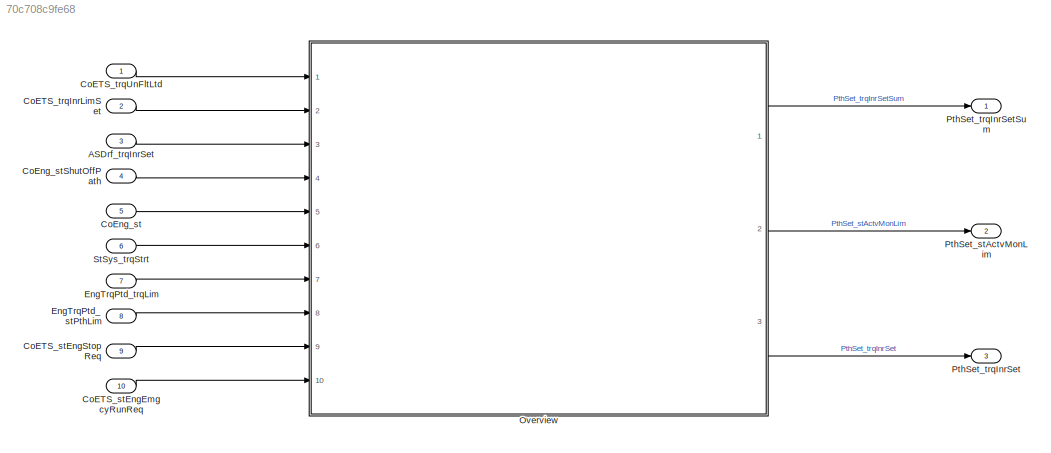
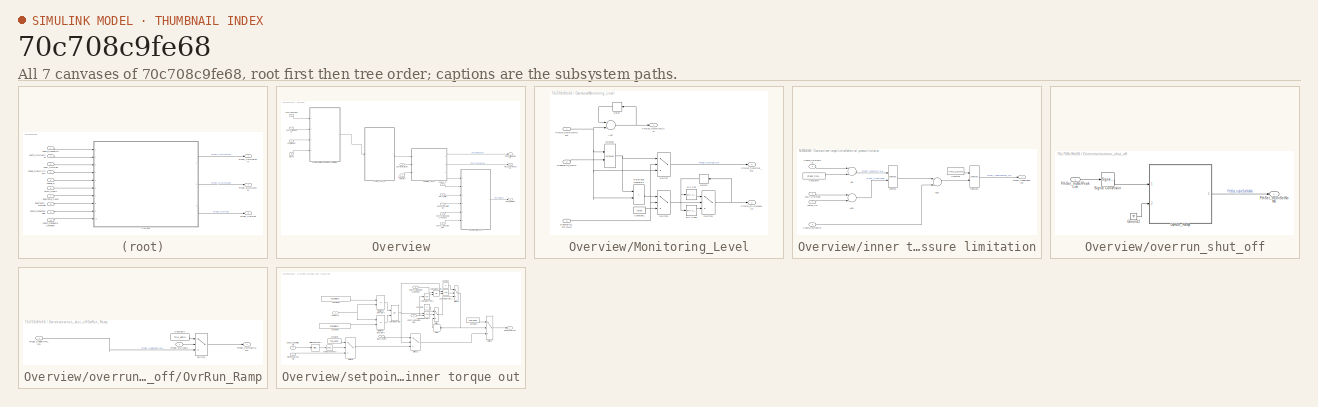
[diagram: thumbnail index - all 7 canvases of the model, root first then tree order]
MODEL slx_70c708c9fe68
KIND model
CONFIG AbsTol = auto
CONFIG EnableMultiTasking = off
CONFIG FixedStep = 0.001
CONFIG MaxStep = auto
CONFIG MinStep = auto
CONFIG RelTol = 1e-3
CONFIG SampleTimeConstraint = Unconstrained
CONFIG Solver = FixedStepDiscrete
CONFIG SolverName = FixedStepDiscrete
CONFIG StartTime = 0.0
CONFIG StopTime = Inf
BLOCK [Inport] ASDrf_trqInrSet
  Description = Limited idle speed governor torque
  IconDisplay = Port number
  OutDataTypeStr = Torq
  OutMax = 3000
  OutMin = -3000
  Port = 3
  PortDimensions = [1 1]
  Unit = Nm
BLOCK [Inport] CoETS_stEngEmgcyRunReq
  Description = State of overrun detection (0: No overrun; 1: overrun)
  IconDisplay = Port number
  OutDataTypeStr = boolean
  OutMax = 1
  OutMin = 0
  Port = 10
  PortDimensions = [1 1]
BLOCK [Inport] CoETS_stEngStopReq
  Description = Engine starting torque
  IconDisplay = Port number
  OutDataTypeStr = boolean
  OutMax = 1
  OutMin = 0
  Port = 9
  PortDimensions = [1 1]
BLOCK [Inport] CoETS_trqInrLimSet
  Description = Powertrain torque ratio
  IconDisplay = Port number
  OutDataTypeStr = Torq
  OutMax = 3000
  OutMin = -3000
  Port = 2
  PortDimensions = [1 1]
BLOCK [Inport] CoETS_trqUnFltLtd
  Description = Grip reliable exclude
  IconDisplay = Port number
  OutDataTypeStr = Torq
  OutMax = 3276
  OutMin = -3276
  PortDimensions = [1 1]
BLOCK [Inport] CoEng_st
  Description = ASD reference filter torque output
  IconDisplay = Port number
  OutDataTypeStr = Enum:EngState
  Port = 5
  PortDimensions = [1 1]
BLOCK [Inport] CoEng_stShutOffPath
  Description = Limitation torque without the part of the speed governor
  IconDisplay = Port number
  OutDataTypeStr = State2
  OutMax = 65535
  OutMin = 0
  Port = 4
  PortDimensions = [1 1]
BLOCK [Inport] EngTrqPtd_stPthLim
  Description = Engine coordinator state
  IconDisplay = Port number
  OutDataTypeStr = State
  OutMax = 255
  OutMin = 0
  Port = 8
  PortDimensions = [1 1]
BLOCK [Inport] EngTrqPtd_trqLim
  Description = Active shut-off paths resulting from active reversible,irreversible and afterrun shut-off paths
  IconDisplay = Port number
  OutDataTypeStr = Torq
  OutMax = 3276
  OutMin = -3276
  Port = 7
  PortDimensions = [1 1]
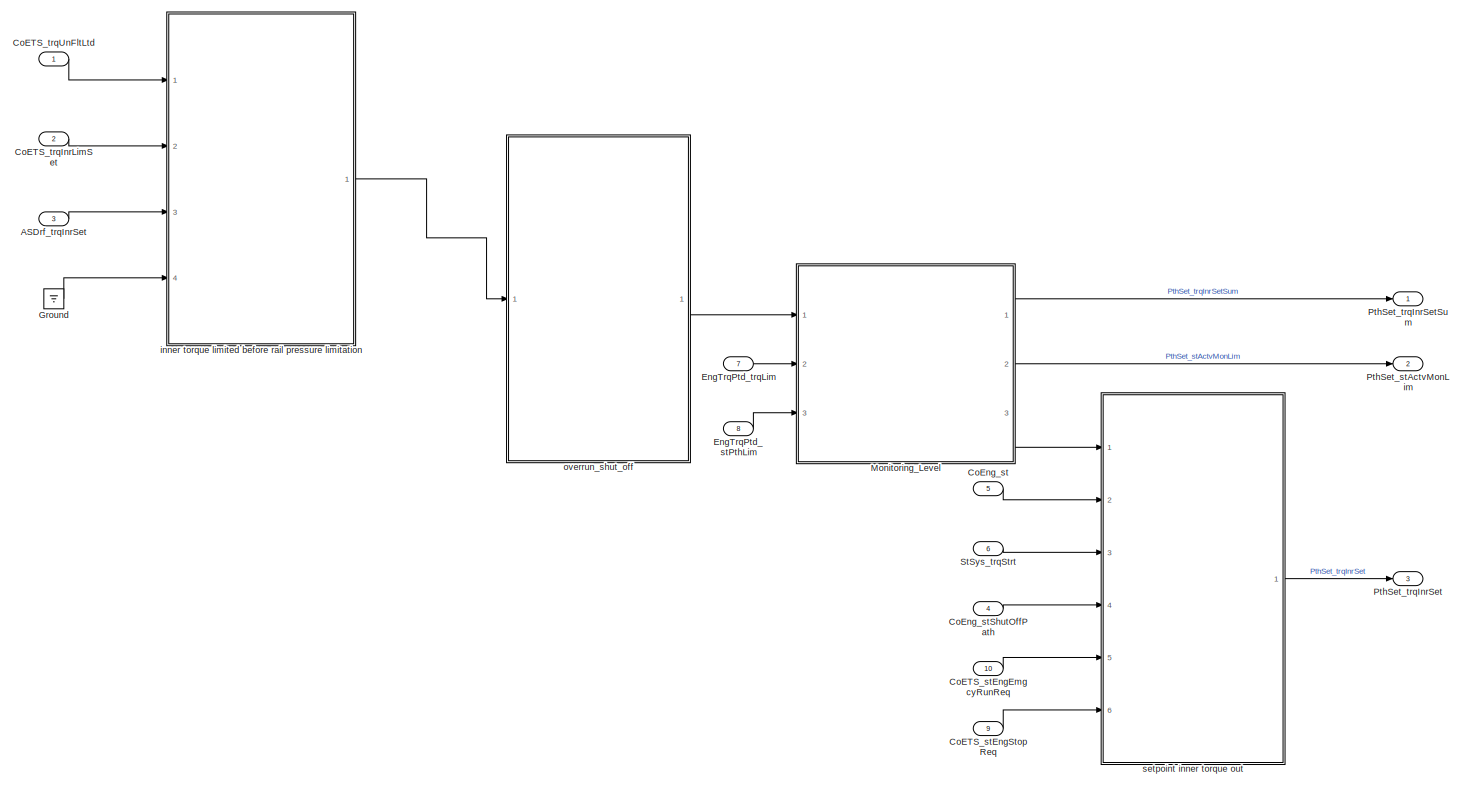
[diagram: Overview - part 1/1, most of the canvas]
BLOCK [SubSystem] Overview
  Ports = [10, 3]
  RequestExecContextInheritance = off
BLOCK [Inport] Overview/ASDrf_trqInrSet
  IconDisplay = Port number
  Port = 3
  Tag = Nm
BLOCK [Inport] Overview/CoETS_stEngEmgcyRunReq
  IconDisplay = Port number
  Port = 10
BLOCK [Inport] Overview/CoETS_stEngStopReq
  IconDisplay = Port number
  Port = 9
BLOCK [Inport] Overview/CoETS_trqInrLimSet
  IconDisplay = Port number
  Port = 2
  Tag = Nm
BLOCK [Inport] Overview/CoETS_trqUnFltLtd
  IconDisplay = Port number
  Tag = Nm
BLOCK [Inport] Overview/CoEng_st
  IconDisplay = Port number
  Port = 5
BLOCK [Inport] Overview/CoEng_stShutOffPath
  IconDisplay = Port number
  Port = 4
BLOCK [Inport] Overview/EngTrqPtd_stPthLim
  IconDisplay = Port number
  Port = 8
BLOCK [Inport] Overview/EngTrqPtd_trqLim
  IconDisplay = Port number
  Port = 7
  Tag = Nm
BLOCK [Ground] Overview/Ground
BLOCK [SubSystem] Overview/Monitoring_Level
  Ports = [3, 3]
  RequestExecContextInheritance = off
BLOCK [Sum] Overview/Monitoring_Level/Add
  OutDataTypeStr = Inherit: Inherit via internal rule
  Ports = [2, 1]
BLOCK [Reference] Overview/Monitoring_Level/Bit Clear  REF=simulink/Logic and Bit
Operations/Bit Clear
  Ports = [1, 1]
  SourceBlock = simulink/Logic and Bit\nOperations/Bit Clear
  SourceProductBaseCode = SL
  SourceProductName = Simulink
  SourceType = Bit Clear
BLOCK [Reference] Overview/Monitoring_Level/Bit Set  REF=simulink/Logic and Bit
Operations/Bit Set
  Ports = [1, 1]
  SourceBlock = simulink/Logic and Bit\nOperations/Bit Set
  SourceProductBaseCode = SL
  SourceProductName = Simulink
  SourceType = Bit Set
BLOCK [Constant] Overview/Monitoring_Level/Constant1
  OutDataTypeStr = Inherit: Inherit via back propagation
  Value = false
BLOCK [Delay] Overview/Monitoring_Level/Delay
  DelayLength = 1
  InitialCondition = 0
  InputPortMap = u0
  Ports = [1, 1]
BLOCK [Delay] Overview/Monitoring_Level/Delay2
  DelayLength = 1
  InitialCondition = 0
  InputPortMap = u0
  Ports = [1, 1]
BLOCK [Inport] Overview/Monitoring_Level/EngTrqPtd_stPthLim
  IconDisplay = Port number
  Port = 3
BLOCK [Inport] Overview/Monitoring_Level/EngTrqPtd_trqLim
  IconDisplay = Port number
  Port = 2
BLOCK [MinMax] Overview/Monitoring_Level/MinMax
  Inputs = 2
  Ports = [2, 1]
  SaturateOnIntegerOverflow = off
BLOCK [Outport] Overview/Monitoring_Level/PthSet_stActvMonLim
  IconDisplay = Port number
  Port = 2
BLOCK [Inport] Overview/Monitoring_Level/PthSet_trqInrSetNoMo
  IconDisplay = Port number
BLOCK [Outport] Overview/Monitoring_Level/PthSet_trqInrSetSum
  IconDisplay = Port number
BLOCK [Outport] Overview/Monitoring_Level/PthSet_trqInrSet_mp
  IconDisplay = Port number
  Port = 3
BLOCK [RelationalOperator] Overview/Monitoring_Level/Relational Operator1
  Operator = <
  OutDataTypeStr = boolean
  Ports = [2, 1]
  RndMeth = Simplest
BLOCK [Switch] Overview/Monitoring_Level/Switch
  Criteria = u2 ~= 0
  SaturateOnIntegerOverflow = off
BLOCK [Switch] Overview/Monitoring_Level/Switch1
  Criteria = u2 ~= 0
  SaturateOnIntegerOverflow = off
BLOCK [Switch] Overview/Monitoring_Level/Switch2
  Criteria = u2 ~= 0
  SaturateOnIntegerOverflow = off
BLOCK [Outport] Overview/PthSet_stActvMonLim
  IconDisplay = Port number
  Port = 2
BLOCK [Outport] Overview/PthSet_trqInrSet
  IconDisplay = Port number
  Port = 3
  Tag = Nm
BLOCK [Outport] Overview/PthSet_trqInrSetSum
  IconDisplay = Port number
  Tag = Nm
BLOCK [Inport] Overview/StSys_trqStrt
  IconDisplay = Port number
  Port = 6
  Tag = Nm
BLOCK [SubSystem] Overview/inner torque limited before rail pressure limitation
  Ports = [4, 1]
  RequestExecContextInheritance = off
BLOCK [Inport] Overview/inner torque limited before rail pressure limitation/ASDdc_trq
  IconDisplay = Port number
  Port = 4
BLOCK [Inport] Overview/inner torque limited before rail pressure limitation/ASDrf_trqInrSet
  IconDisplay = Port number
  Port = 3
BLOCK [Sum] Overview/inner torque limited before rail pressure limitation/Add
  OutDataTypeStr = Inherit: Inherit via internal rule
  Ports = [2, 1]
BLOCK [Sum] Overview/inner torque limited before rail pressure limitation/Add1
  Inputs = +-
  OutDataTypeStr = Inherit: Inherit via back propagation
  Ports = [2, 1]
BLOCK [Sum] Overview/inner torque limited before rail pressure limitation/Add2
  OutDataTypeStr = Inherit: Inherit via internal rule
  Ports = [2, 1]
BLOCK [Inport] Overview/inner torque limited before rail pressure limitation/CoETS_trqInrLimSet
  IconDisplay = Port number
  Port = 2
BLOCK [Inport] Overview/inner torque limited before rail pressure limitation/CoETS_trqUnFltLtd
  IconDisplay = Port number
BLOCK [Constant] Overview/inner torque limited before rail pressure limitation/Constant
  OutDataTypeStr = Inherit: Inherit via back propagation
  Value = TRQ_ZERO
BLOCK [Constant] Overview/inner torque limited before rail pressure limitation/Constant2
  Value = PthSet_trqOffs_C
BLOCK [MinMax] Overview/inner torque limited before rail pressure limitation/MinMax
  Inputs = 2
  Ports = [2, 1]
  SaturateOnIntegerOverflow = off
BLOCK [MinMax] Overview/inner torque limited before rail pressure limitation/MinMax1
  Function = max
  Inputs = 2
  Ports = [2, 1]
  SaturateOnIntegerOverflow = off
BLOCK [Outport] Overview/inner torque limited before rail pressure limitation/PthSet_trqBefPeakLim
  IconDisplay = Port number
BLOCK [SubSystem] Overview/overrun_shut_off
  Ports = [1, 1]
  RequestExecContextInheritance = off
BLOCK [Ground] Overview/overrun_shut_off/Ground2
BLOCK [SubSystem] Overview/overrun_shut_off/OvrRun_Ramp
  Ports = [2, 1]
  RequestExecContextInheritance = off
BLOCK [Constant] Overview/overrun_shut_off/OvrRun_Ramp/Constant2
  OutDataTypeStr = Inherit: Inherit via back propagation
  Value = TRQ_ZERO
BLOCK [Inport] Overview/overrun_shut_off/OvrRun_Ramp/PthSet_stDisable
  IconDisplay = Port number
  Port = 2
BLOCK [Inport] Overview/overrun_shut_off/OvrRun_Ramp/PthSet_trqBefRmp_mp
  IconDisplay = Port number
BLOCK [Outport] Overview/overrun_shut_off/OvrRun_Ramp/PthSet_trqInrSetNoMo
  IconDisplay = Port number
BLOCK [Switch] Overview/overrun_shut_off/OvrRun_Ramp/Switch1
  Criteria = u2 ~= 0
  SaturateOnIntegerOverflow = off
BLOCK [Inport] Overview/overrun_shut_off/PthSet_trqBefPeakLim
  IconDisplay = Port number
BLOCK [Outport] Overview/overrun_shut_off/PthSet_trqInrSetNoMo
  IconDisplay = Port number
BLOCK [SignalConversion] Overview/overrun_shut_off/Signal Conversion
  OverrideOpt = off
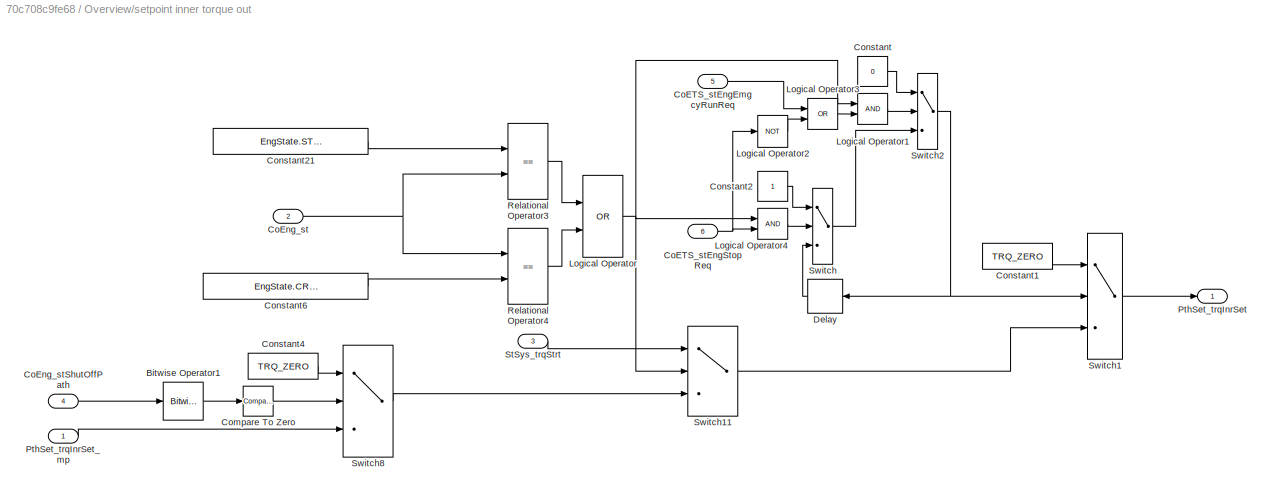
BLOCK [SubSystem] Overview/setpoint inner torque out
  Ports = [6, 1]
  RequestExecContextInheritance = off
BLOCK [Reference] Overview/setpoint inner torque out/Bitwise Operator1  REF=simulink/Logic and Bit
Operations/Bitwise
Operator
  Ports = [1, 1]
  SourceBlock = simulink/Logic and Bit\nOperations/Bitwise\nOperator
  SourceProductBaseCode = SL
  SourceProductName = Simulink
  SourceType = Bitwise Operator
BLOCK [Inport] Overview/setpoint inner torque out/CoETS_stEngEmgcyRunReq
  IconDisplay = Port number
  Port = 5
BLOCK [Inport] Overview/setpoint inner torque out/CoETS_stEngStopReq
  IconDisplay = Port number
  Port = 6
BLOCK [Inport] Overview/setpoint inner torque out/CoEng_st
  IconDisplay = Port number
  Port = 2
BLOCK [Inport] Overview/setpoint inner torque out/CoEng_stShutOffPath
  IconDisplay = Port number
  Port = 4
BLOCK [Reference] Overview/setpoint inner torque out/Compare To Zero  REF=simulink/Logic and Bit
Operations/Compare
To Zero
  Ports = [1, 1]
  SourceBlock = simulink/Logic and Bit\nOperations/Compare\nTo Zero
  SourceProductBaseCode = SL
  SourceProductName = Simulink
  SourceType = Compare To Zero
BLOCK [Constant] Overview/setpoint inner torque out/Constant
  OutDataTypeStr = Inherit: Inherit via back propagation
  Value = 0
BLOCK [Constant] Overview/setpoint inner torque out/Constant1
  OutDataTypeStr = Inherit: Inherit via back propagation
  Value = TRQ_ZERO
BLOCK [Constant] Overview/setpoint inner torque out/Constant2
  OutDataTypeStr = Inherit: Inherit via back propagation
BLOCK [Constant] Overview/setpoint inner torque out/Constant21
  OutDataTypeStr = Inherit: Inherit via back propagation
  Value = EngState.STOPPED
BLOCK [Constant] Overview/setpoint inner torque out/Constant4
  OutDataTypeStr = Inherit: Inherit via back propagation
  Value = TRQ_ZERO
BLOCK [Constant] Overview/setpoint inner torque out/Constant6
  OutDataTypeStr = Inherit: Inherit via back propagation
  Value = EngState.CRANKING
BLOCK [Delay] Overview/setpoint inner torque out/Delay
  DelayLength = 1
  InitialCondition = 0
  InputPortMap = u0
  Ports = [1, 1]
BLOCK [Logic] Overview/setpoint inner torque out/Logical Operator
  Operator = OR
  OutDataTypeStr = boolean
  Ports = [2, 1]
BLOCK [Logic] Overview/setpoint inner torque out/Logical Operator1
  AllPortsSameDT = off
  OutDataTypeStr = boolean
  Ports = [2, 1]
BLOCK [Logic] Overview/setpoint inner torque out/Logical Operator2
  AllPortsSameDT = off
  Operator = NOT
  OutDataTypeStr = boolean
  Ports = [1, 1]
BLOCK [Logic] Overview/setpoint inner torque out/Logical Operator3
  AllPortsSameDT = off
  Operator = OR
  OutDataTypeStr = boolean
  Ports = [2, 1]
BLOCK [Logic] Overview/setpoint inner torque out/Logical Operator4
  AllPortsSameDT = off
  OutDataTypeStr = boolean
  Ports = [2, 1]
BLOCK [Outport] Overview/setpoint inner torque out/PthSet_trqInrSet
  IconDisplay = Port number
BLOCK [Inport] Overview/setpoint inner torque out/PthSet_trqInrSet_mp
  IconDisplay = Port number
BLOCK [RelationalOperator] Overview/setpoint inner torque out/Relational Operator3
  Operator = ==
  OutDataTypeStr = boolean
  Ports = [2, 1]
  RndMeth = Simplest
BLOCK [RelationalOperator] Overview/setpoint inner torque out/Relational Operator4
  Operator = ==
  OutDataTypeStr = boolean
  Ports = [2, 1]
  RndMeth = Simplest
BLOCK [Inport] Overview/setpoint inner torque out/StSys_trqStrt
  IconDisplay = Port number
  Port = 3
BLOCK [Switch] Overview/setpoint inner torque out/Switch
  Criteria = u2 ~= 0
  InputSameDT = off
  SaturateOnIntegerOverflow = off
BLOCK [Switch] Overview/setpoint inner torque out/Switch1
  Criteria = u2 ~= 0
  SaturateOnIntegerOverflow = off
BLOCK [Switch] Overview/setpoint inner torque out/Switch11
  Criteria = u2 ~= 0
  SaturateOnIntegerOverflow = off
BLOCK [Switch] Overview/setpoint inner torque out/Switch2
  Criteria = u2 ~= 0
  InputSameDT = off
  SaturateOnIntegerOverflow = off
BLOCK [Switch] Overview/setpoint inner torque out/Switch8
  Criteria = u2 ~= 0
  SaturateOnIntegerOverflow = off
BLOCK [Outport] PthSet_stActvMonLim
  IconDisplay = Port number
  Port = 2
BLOCK [Outport] PthSet_trqInrSet
  IconDisplay = Port number
  Port = 3
BLOCK [Outport] PthSet_trqInrSetSum
  IconDisplay = Port number
BLOCK [Inport] StSys_trqStrt
  Description = ASD disturbance compensator torque output
  IconDisplay = Port number
  OutDataTypeStr = Torq
  OutMax = 3000
  OutMin = -3000
  Port = 6
  PortDimensions = [1 1]
  Unit = Nm
LINE ASDrf_trqInrSet:1 -> Overview:3
LINE CoETS_stEngEmgcyRunReq:1 -> Overview:10
LINE CoETS_stEngStopReq:1 -> Overview:9
LINE CoETS_trqInrLimSet:1 -> Overview:2
LINE CoETS_trqUnFltLtd:1 -> Overview:1
LINE CoEng_st:1 -> Overview:5
LINE CoEng_stShutOffPath:1 -> Overview:4
LINE EngTrqPtd_stPthLim:1 -> Overview:8
LINE EngTrqPtd_trqLim:1 -> Overview:7
LINE Overview/ASDrf_trqInrSet:1 -> Overview/inner torque limited before rail pressure limitation:3
LINE Overview/CoETS_stEngEmgcyRunReq:1 -> Overview/setpoint inner torque out:5
LINE Overview/CoETS_stEngStopReq:1 -> Overview/setpoint inner torque out:6
LINE Overview/CoETS_trqInrLimSet:1 -> Overview/inner torque limited before rail pressure limitation:2
LINE Overview/CoETS_trqUnFltLtd:1 -> Overview/inner torque limited before rail pressure limitation:1
LINE Overview/CoEng_st:1 -> Overview/setpoint inner torque out:2
LINE Overview/CoEng_stShutOffPath:1 -> Overview/setpoint inner torque out:4
LINE Overview/EngTrqPtd_stPthLim:1 -> Overview/Monitoring_Level:3
LINE Overview/EngTrqPtd_trqLim:1 -> Overview/Monitoring_Level:2
LINE Overview/Ground:1 -> Overview/inner torque limited before rail pressure limitation:4
NET Overview/Monitoring_Level/Add:1 -> Overview/Monitoring_Level/Delay:1, Overview/Monitoring_Level/PthSet_trqInrSetSum:1
LINE Overview/Monitoring_Level/Bit Clear:1 -> Overview/Monitoring_Level/Switch2:3
LINE Overview/Monitoring_Level/Bit Set:1 -> Overview/Monitoring_Level/Switch2:1
LINE Overview/Monitoring_Level/Constant1:1 -> Overview/Monitoring_Level/Switch1:3
NET Overview/Monitoring_Level/Delay2:1 -> Overview/Monitoring_Level/Bit Clear:1, Overview/Monitoring_Level/Bit Set:1
LINE Overview/Monitoring_Level/Delay:1 -> Overview/Monitoring_Level/Add:1
NET Overview/Monitoring_Level/EngTrqPtd_stPthLim:1 -> Overview/Monitoring_Level/Switch1:2, Overview/Monitoring_Level/Switch:2
LINE Overview/Monitoring_Level/EngTrqPtd_trqLim:1 -> Overview/Monitoring_Level/MinMax:2
NET Overview/Monitoring_Level/MinMax:1 -> Overview/Monitoring_Level/Relational Operator1:1, Overview/Monitoring_Level/Switch:1
NET Overview/Monitoring_Level/PthSet_trqInrSetNoMo:1 -> Overview/Monitoring_Level/Add:2, Overview/Monitoring_Level/MinMax:1, Overview/Monitoring_Level/Relational Operator1:2, Overview/Monitoring_Level/Switch:3
LINE Overview/Monitoring_Level/Relational Operator1:1 -> Overview/Monitoring_Level/Switch1:1
LINE Overview/Monitoring_Level/Switch1:1 -> Overview/Monitoring_Level/Switch2:2
NET Overview/Monitoring_Level/Switch2:1 -> Overview/Monitoring_Level/Delay2:1, Overview/Monitoring_Level/PthSet_stActvMonLim:1
LINE Overview/Monitoring_Level/Switch:1 -> Overview/Monitoring_Level/PthSet_trqInrSet_mp:1
LINE Overview/Monitoring_Level:1 -> Overview/PthSet_trqInrSetSum:1
LINE Overview/Monitoring_Level:2 -> Overview/PthSet_stActvMonLim:1
LINE Overview/Monitoring_Level:3 -> Overview/setpoint inner torque out:1
LINE Overview/StSys_trqStrt:1 -> Overview/setpoint inner torque out:3
LINE Overview/inner torque limited before rail pressure limitation/ASDdc_trq:1 -> Overview/inner torque limited before rail pressure limitation/Add1:2
LINE Overview/inner torque limited before rail pressure limitation/ASDrf_trqInrSet:1 -> Overview/inner torque limited before rail pressure limitation/Add1:1
LINE Overview/inner torque limited before rail pressure limitation/Add1:1 -> Overview/inner torque limited before rail pressure limitation/MinMax:2
LINE Overview/inner torque limited before rail pressure limitation/Add2:1 -> Overview/inner torque limited before rail pressure limitation/MinMax1:2
LINE Overview/inner torque limited before rail pressure limitation/Add:1 -> Overview/inner torque limited before rail pressure limitation/MinMax:1
LINE Overview/inner torque limited before rail pressure limitation/CoETS_trqInrLimSet:1 -> Overview/inner torque limited before rail pressure limitation/Add:1
LINE Overview/inner torque limited before rail pressure limitation/CoETS_trqUnFltLtd:1 -> Overview/inner torque limited before rail pressure limitation/Add2:2
LINE Overview/inner torque limited before rail pressure limitation/Constant2:1 -> Overview/inner torque limited before rail pressure limitation/Add:2
LINE Overview/inner torque limited before rail pressure limitation/Constant:1 -> Overview/inner torque limited before rail pressure limitation/MinMax1:1
LINE Overview/inner torque limited before rail pressure limitation/MinMax1:1 -> Overview/inner torque limited before rail pressure limitation/PthSet_trqBefPeakLim:1
LINE Overview/inner torque limited before rail pressure limitation/MinMax:1 -> Overview/inner torque limited before rail pressure limitation/Add2:1
LINE Overview/inner torque limited before rail pressure limitation:1 -> Overview/overrun_shut_off:1
LINE Overview/overrun_shut_off/Ground2:1 -> Overview/overrun_shut_off/OvrRun_Ramp:2
LINE Overview/overrun_shut_off/OvrRun_Ramp/Constant2:1 -> Overview/overrun_shut_off/OvrRun_Ramp/Switch1:1
LINE Overview/overrun_shut_off/OvrRun_Ramp/PthSet_stDisable:1 -> Overview/overrun_shut_off/OvrRun_Ramp/Switch1:2
LINE Overview/overrun_shut_off/OvrRun_Ramp/PthSet_trqBefRmp_mp:1 -> Overview/overrun_shut_off/OvrRun_Ramp/Switch1:3
LINE Overview/overrun_shut_off/OvrRun_Ramp/Switch1:1 -> Overview/overrun_shut_off/OvrRun_Ramp/PthSet_trqInrSetNoMo:1
LINE Overview/overrun_shut_off/OvrRun_Ramp:1 -> Overview/overrun_shut_off/PthSet_trqInrSetNoMo:1
LINE Overview/overrun_shut_off/PthSet_trqBefPeakLim:1 -> Overview/overrun_shut_off/Signal Conversion:1
LINE Overview/overrun_shut_off/Signal Conversion:1 -> Overview/overrun_shut_off/OvrRun_Ramp:1
LINE Overview/overrun_shut_off:1 -> Overview/Monitoring_Level:1
LINE Overview/setpoint inner torque out/Bitwise Operator1:1 -> Overview/setpoint inner torque out/Compare To Zero:1
LINE Overview/setpoint inner torque out/CoETS_stEngEmgcyRunReq:1 -> Overview/setpoint inner torque out/Logical Operator3:1
NET Overview/setpoint inner torque out/CoETS_stEngStopReq:1 -> Overview/setpoint inner torque out/Logical Operator2:1, Overview/setpoint inner torque out/Logical Operator4:2
NET Overview/setpoint inner torque out/CoEng_st:1 -> Overview/setpoint inner torque out/Relational Operator3:2, Overview/setpoint inner torque out/Relational Operator4:1
LINE Overview/setpoint inner torque out/CoEng_stShutOffPath:1 -> Overview/setpoint inner torque out/Bitwise Operator1:1
LINE Overview/setpoint inner torque out/Compare To Zero:1 -> Overview/setpoint inner torque out/Switch8:2
LINE Overview/setpoint inner torque out/Constant1:1 -> Overview/setpoint inner torque out/Switch1:1
LINE Overview/setpoint inner torque out/Constant21:1 -> Overview/setpoint inner torque out/Relational Operator3:1
LINE Overview/setpoint inner torque out/Constant2:1 -> Overview/setpoint inner torque out/Switch:1
LINE Overview/setpoint inner torque out/Constant4:1 -> Overview/setpoint inner torque out/Switch8:1
LINE Overview/setpoint inner torque out/Constant6:1 -> Overview/setpoint inner torque out/Relational Operator4:2
LINE Overview/setpoint inner torque out/Constant:1 -> Overview/setpoint inner torque out/Switch2:1
LINE Overview/setpoint inner torque out/Delay:1 -> Overview/setpoint inner torque out/Switch:3
LINE Overview/setpoint inner torque out/Logical Operator1:1 -> Overview/setpoint inner torque out/Switch2:2
LINE Overview/setpoint inner torque out/Logical Operator2:1 -> Overview/setpoint inner torque out/Logical Operator3:2
LINE Overview/setpoint inner torque out/Logical Operator3:1 -> Overview/setpoint inner torque out/Logical Operator1:2
LINE Overview/setpoint inner torque out/Logical Operator4:1 -> Overview/setpoint inner torque out/Switch:2
NET Overview/setpoint inner torque out/Logical Operator:1 -> Overview/setpoint inner torque out/Logical Operator1:1, Overview/setpoint inner torque out/Logical Operator4:1, Overview/setpoint inner torque out/Switch11:2
LINE Overview/setpoint inner torque out/PthSet_trqInrSet_mp:1 -> Overview/setpoint inner torque out/Switch8:3
LINE Overview/setpoint inner torque out/Relational Operator3:1 -> Overview/setpoint inner torque out/Logical Operator:1
LINE Overview/setpoint inner torque out/Relational Operator4:1 -> Overview/setpoint inner torque out/Logical Operator:2
LINE Overview/setpoint inner torque out/StSys_trqStrt:1 -> Overview/setpoint inner torque out/Switch11:1
LINE Overview/setpoint inner torque out/Switch11:1 -> Overview/setpoint inner torque out/Switch1:3
LINE Overview/setpoint inner torque out/Switch1:1 -> Overview/setpoint inner torque out/PthSet_trqInrSet:1
NET Overview/setpoint inner torque out/Switch2:1 -> Overview/setpoint inner torque out/Delay:1, Overview/setpoint inner torque out/Switch1:2
LINE Overview/setpoint inner torque out/Switch8:1 -> Overview/setpoint inner torque out/Switch11:3
LINE Overview/setpoint inner torque out/Switch:1 -> Overview/setpoint inner torque out/Switch2:3
LINE Overview/setpoint inner torque out:1 -> Overview/PthSet_trqInrSet:1
LINE Overview:1 -> PthSet_trqInrSetSum:1
LINE Overview:2 -> PthSet_stActvMonLim:1
LINE Overview:3 -> PthSet_trqInrSet:1
LINE StSys_trqStrt:1 -> Overview:6
note: NET lines group one-source signal fan-out (src -> all destinations, sorted); 1:1 wires keep LINE
